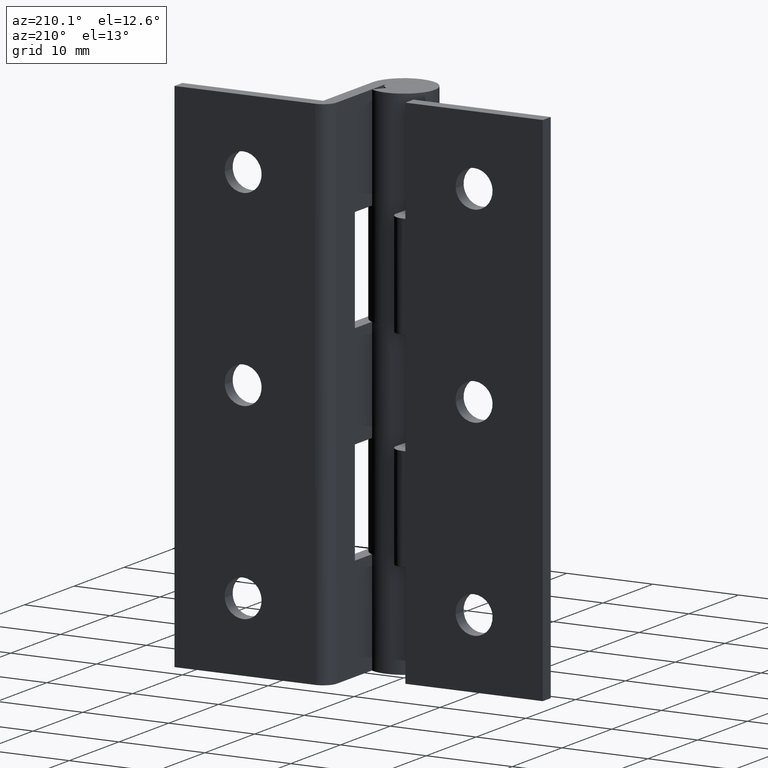
[diagram: clean part render]
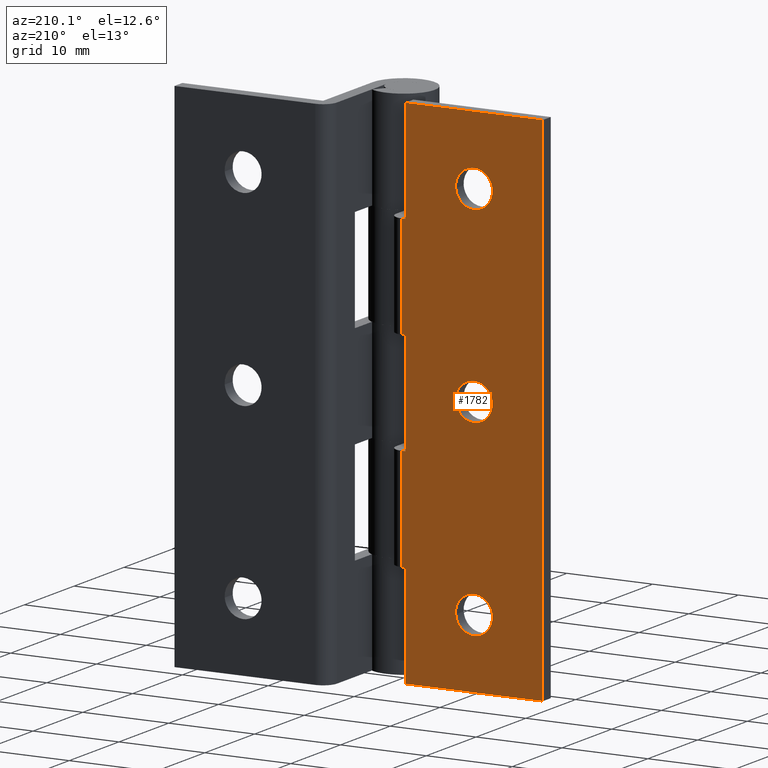
[diagram: same view with one face highlighted and labeled with its STEP entity id]
A machine part, auxiliary view. The second image highlights one B-rep face of the part: STEP entity #1782.
In plain terms, the highlighted face is a freeform B-spline surface patch.
Its self-contained STEP definition (entity closure, byte-faithful):
#330=CARTESIAN_POINT('',(-14.143372267521290,6.599999000000079,52.168687055877513));
#331=VERTEX_POINT('',#330);
#337=CARTESIAN_POINT('',(-12.0,6.599999000000079,54.149999999999999));
#338=VERTEX_POINT('',#337);
#339=CARTESIAN_POINT('',(-12.0,6.599999000000079,54.149999999999999));
#340=CARTESIAN_POINT('',(-13.987439556948599,6.599999000000080,54.150000000000013));
#341=CARTESIAN_POINT('',(-14.143372267521290,6.599999000000079,52.168687055877520));
#349=(BOUNDED_CURVE()B_SPLINE_CURVE(2,(#339,#340,#341),.UNSPECIFIED.,.F.,.U.)B_SPLINE_CURVE_WITH_KNOTS((3,3),(0.0,0.236331300622746),.UNSPECIFIED.)CURVE()GEOMETRIC_REPRESENTATION_ITEM()RATIONAL_B_SPLINE_CURVE((1.0,0.723120658616937,0.969723356150902))REPRESENTATION_ITEM(''));
#350=EDGE_CURVE('',#338,#331,#349,.T.);
#352=CARTESIAN_POINT('',(-9.856627732478707,6.599999000000080,51.831312944122487));
#353=VERTEX_POINT('',#352);
#354=CARTESIAN_POINT('',(-9.856627732478707,6.599999000000080,51.831312944122494));
#355=CARTESIAN_POINT('',(-9.850000000000001,6.599999000000079,51.915526269870576));
#356=CARTESIAN_POINT('',(-9.850000000000001,6.599999000000079,52.0));
#357=CARTESIAN_POINT('',(-9.850000000000001,6.599999000000079,54.150000000000006));
#358=CARTESIAN_POINT('',(-12.0,6.599999000000079,54.149999999999999));
#366=(BOUNDED_CURVE()B_SPLINE_CURVE(2,(#354,#355,#356,#357,#358),.UNSPECIFIED.,.F.,.U.)B_SPLINE_CURVE_WITH_KNOTS((3,2,3),(0.736331300622745,0.750000000000000,1.0),.UNSPECIFIED.)CURVE()GEOMETRIC_REPRESENTATION_ITEM()RATIONAL_B_SPLINE_CURVE((0.969723356150901,0.983986122569609,1.0,0.707106781186547,1.0))REPRESENTATION_ITEM(''));
#367=EDGE_CURVE('',#353,#338,#366,.T.);
#443=CARTESIAN_POINT('',(-12.0,6.599999000000079,49.850000000000001));
#444=VERTEX_POINT('',#443);
#445=CARTESIAN_POINT('',(-12.0,6.599999000000079,49.850000000000001));
#446=CARTESIAN_POINT('',(-10.012560443051404,6.599999000000079,49.850000000000016));
#447=CARTESIAN_POINT('',(-9.856627732478707,6.599999000000080,51.831312944122487));
#455=(BOUNDED_CURVE()B_SPLINE_CURVE(2,(#445,#446,#447),.UNSPECIFIED.,.F.,.U.)B_SPLINE_CURVE_WITH_KNOTS((3,3),(0.500000000000000,0.736331300622745),.UNSPECIFIED.)CURVE()GEOMETRIC_REPRESENTATION_ITEM()RATIONAL_B_SPLINE_CURVE((1.0,0.723120658616938,0.969723356150901))REPRESENTATION_ITEM(''));
#456=EDGE_CURVE('',#444,#353,#455,.T.);
#458=CARTESIAN_POINT('',(-14.143372267521290,6.599999000000079,52.168687055877513));
#459=CARTESIAN_POINT('',(-14.150000000000004,6.599999000000079,52.084473730129432));
#460=CARTESIAN_POINT('',(-14.150000000000000,6.599999000000079,52.0));
#461=CARTESIAN_POINT('',(-14.150000000000006,6.599999000000079,49.850000000000009));
#462=CARTESIAN_POINT('',(-12.0,6.599999000000079,49.850000000000001));
#470=(BOUNDED_CURVE()B_SPLINE_CURVE(2,(#458,#459,#460,#461,#462),.UNSPECIFIED.,.F.,.U.)B_SPLINE_CURVE_WITH_KNOTS((3,2,3),(0.236331300622746,0.250000000000000,0.500000000000000),.UNSPECIFIED.)CURVE()GEOMETRIC_REPRESENTATION_ITEM()RATIONAL_B_SPLINE_CURVE((0.969723356150902,0.983986122569610,1.0,0.707106781186547,1.0))REPRESENTATION_ITEM(''));
#471=EDGE_CURVE('',#331,#444,#470,.T.);
#512=CARTESIAN_POINT('',(-14.143372267521290,6.599999000000079,30.168687055877509));
#513=VERTEX_POINT('',#512);
#519=CARTESIAN_POINT('',(-12.0,6.599999000000079,32.149999999999999));
#520=VERTEX_POINT('',#519);
#521=CARTESIAN_POINT('',(-12.0,6.599999000000079,32.149999999999999));
#522=CARTESIAN_POINT('',(-13.987439556948599,6.599999000000080,32.150000000000006));
#523=CARTESIAN_POINT('',(-14.143372267521290,6.599999000000079,30.168687055877513));
#531=(BOUNDED_CURVE()B_SPLINE_CURVE(2,(#521,#522,#523),.UNSPECIFIED.,.F.,.U.)B_SPLINE_CURVE_WITH_KNOTS((3,3),(0.0,0.236331300622746),.UNSPECIFIED.)CURVE()GEOMETRIC_REPRESENTATION_ITEM()RATIONAL_B_SPLINE_CURVE((1.0,0.723120658616937,0.969723356150902))REPRESENTATION_ITEM(''));
#532=EDGE_CURVE('',#520,#513,#531,.T.);
#534=CARTESIAN_POINT('',(-9.856627732478707,6.599999000000079,29.831312944122491));
#535=VERTEX_POINT('',#534);
#536=CARTESIAN_POINT('',(-9.856627732478707,6.599999000000079,29.831312944122491));
#537=CARTESIAN_POINT('',(-9.850000000000001,6.599999000000079,29.915526269870572));
#538=CARTESIAN_POINT('',(-9.850000000000001,6.599999000000079,30.0));
#539=CARTESIAN_POINT('',(-9.850000000000001,6.599999000000079,32.149999999999999));
#540=CARTESIAN_POINT('',(-12.0,6.599999000000079,32.149999999999999));
#548=(BOUNDED_CURVE()B_SPLINE_CURVE(2,(#536,#537,#538,#539,#540),.UNSPECIFIED.,.F.,.U.)B_SPLINE_CURVE_WITH_KNOTS((3,2,3),(0.736331300622746,0.750000000000000,1.0),.UNSPECIFIED.)CURVE()GEOMETRIC_REPRESENTATION_ITEM()RATIONAL_B_SPLINE_CURVE((0.969723356150902,0.983986122569610,1.0,0.707106781186547,1.0))REPRESENTATION_ITEM(''));
#549=EDGE_CURVE('',#535,#520,#548,.T.);
#625=CARTESIAN_POINT('',(-12.0,6.599999000000079,27.850000000000001));
#626=VERTEX_POINT('',#625);
#627=CARTESIAN_POINT('',(-12.0,6.599999000000079,27.850000000000001));
#628=CARTESIAN_POINT('',(-10.012560443051404,6.599999000000079,27.849999999999998));
#629=CARTESIAN_POINT('',(-9.856627732478707,6.599999000000079,29.831312944122487));
#637=(BOUNDED_CURVE()B_SPLINE_CURVE(2,(#627,#628,#629),.UNSPECIFIED.,.F.,.U.)B_SPLINE_CURVE_WITH_KNOTS((3,3),(0.500000000000000,0.736331300622745),.UNSPECIFIED.)CURVE()GEOMETRIC_REPRESENTATION_ITEM()RATIONAL_B_SPLINE_CURVE((1.0,0.723120658616938,0.969723356150901))REPRESENTATION_ITEM(''));
#638=EDGE_CURVE('',#626,#535,#637,.T.);
#640=CARTESIAN_POINT('',(-14.143372267521295,6.599999000000079,30.168687055877513));
#641=CARTESIAN_POINT('',(-14.150000000000002,6.599999000000080,30.084473730129424));
#642=CARTESIAN_POINT('',(-14.150000000000000,6.599999000000079,30.0));
#643=CARTESIAN_POINT('',(-14.150000000000006,6.599999000000079,27.850000000000005));
#644=CARTESIAN_POINT('',(-12.0,6.599999000000079,27.850000000000001));
#652=(BOUNDED_CURVE()B_SPLINE_CURVE(2,(#640,#641,#642,#643,#644),.UNSPECIFIED.,.F.,.U.)B_SPLINE_CURVE_WITH_KNOTS((3,2,3),(0.236331300622746,0.250000000000000,0.500000000000000),.UNSPECIFIED.)CURVE()GEOMETRIC_REPRESENTATION_ITEM()RATIONAL_B_SPLINE_CURVE((0.969723356150902,0.983986122569610,1.0,0.707106781186547,1.0))REPRESENTATION_ITEM(''));
#653=EDGE_CURVE('',#513,#626,#652,.T.);
#694=CARTESIAN_POINT('',(-14.143372267521290,6.599999000000079,8.168687055877516));
#695=VERTEX_POINT('',#694);
#701=CARTESIAN_POINT('',(-12.0,6.599999000000079,10.150000000000000));
#702=VERTEX_POINT('',#701);
#703=CARTESIAN_POINT('',(-12.0,6.599999000000079,10.150000000000000));
#704=CARTESIAN_POINT('',(-13.987439556948599,6.599999000000080,10.149999999999999));
#705=CARTESIAN_POINT('',(-14.143372267521290,6.599999000000079,8.168687055877516));
#713=(BOUNDED_CURVE()B_SPLINE_CURVE(2,(#703,#704,#705),.UNSPECIFIED.,.F.,.U.)B_SPLINE_CURVE_WITH_KNOTS((3,3),(0.0,0.236331300622746),.UNSPECIFIED.)CURVE()GEOMETRIC_REPRESENTATION_ITEM()RATIONAL_B_SPLINE_CURVE((1.0,0.723120658616937,0.969723356150902))REPRESENTATION_ITEM(''));
#714=EDGE_CURVE('',#702,#695,#713,.T.);
#716=CARTESIAN_POINT('',(-9.856627732478707,6.599999000000079,7.831312944122485));
#717=VERTEX_POINT('',#716);
#718=CARTESIAN_POINT('',(-9.856627732478707,6.599999000000079,7.831312944122485));
#719=CARTESIAN_POINT('',(-9.850000000000003,6.599999000000081,7.915526269870572));
#720=CARTESIAN_POINT('',(-9.850000000000001,6.599999000000079,8.0));
#721=CARTESIAN_POINT('',(-9.850000000000001,6.599999000000079,10.149999999999999));
#722=CARTESIAN_POINT('',(-12.0,6.599999000000079,10.150000000000000));
#730=(BOUNDED_CURVE()B_SPLINE_CURVE(2,(#718,#719,#720,#721,#722),.UNSPECIFIED.,.F.,.U.)B_SPLINE_CURVE_WITH_KNOTS((3,2,3),(0.736331300622746,0.750000000000000,1.0),.UNSPECIFIED.)CURVE()GEOMETRIC_REPRESENTATION_ITEM()RATIONAL_B_SPLINE_CURVE((0.969723356150902,0.983986122569610,1.0,0.707106781186547,1.0))REPRESENTATION_ITEM(''));
#731=EDGE_CURVE('',#717,#702,#730,.T.);
#807=CARTESIAN_POINT('',(-12.0,6.599999000000079,5.850000000000001));
#808=VERTEX_POINT('',#807);
#809=CARTESIAN_POINT('',(-12.0,6.599999000000079,5.850000000000001));
#810=CARTESIAN_POINT('',(-10.012560443051404,6.599999000000079,5.850000000000000));
#811=CARTESIAN_POINT('',(-9.856627732478707,6.599999000000079,7.831312944122485));
#819=(BOUNDED_CURVE()B_SPLINE_CURVE(2,(#809,#810,#811),.UNSPECIFIED.,.F.,.U.)B_SPLINE_CURVE_WITH_KNOTS((3,3),(0.500000000000000,0.736331300622745),.UNSPECIFIED.)CURVE()GEOMETRIC_REPRESENTATION_ITEM()RATIONAL_B_SPLINE_CURVE((1.0,0.723120658616938,0.969723356150901))REPRESENTATION_ITEM(''));
#820=EDGE_CURVE('',#808,#717,#819,.T.);
#822=CARTESIAN_POINT('',(-14.143372267521290,6.599999000000079,8.168687055877516));
#823=CARTESIAN_POINT('',(-14.150000000000004,6.599999000000079,8.084473730129428));
#824=CARTESIAN_POINT('',(-14.150000000000000,6.599999000000079,8.0));
#825=CARTESIAN_POINT('',(-14.150000000000006,6.599999000000079,5.850000000000001));
#826=CARTESIAN_POINT('',(-12.0,6.599999000000079,5.850000000000001));
#834=(BOUNDED_CURVE()B_SPLINE_CURVE(2,(#822,#823,#824,#825,#826),.UNSPECIFIED.,.F.,.U.)B_SPLINE_CURVE_WITH_KNOTS((3,2,3),(0.236331300622746,0.250000000000000,0.500000000000000),.UNSPECIFIED.)CURVE()GEOMETRIC_REPRESENTATION_ITEM()RATIONAL_B_SPLINE_CURVE((0.969723356150902,0.983986122569610,1.0,0.707106781186547,1.0))REPRESENTATION_ITEM(''));
#835=EDGE_CURVE('',#695,#808,#834,.T.);
#918=CARTESIAN_POINT('',(-3.599999999999900,6.599999000000079,24.0));
#919=VERTEX_POINT('',#918);
#933=CARTESIAN_POINT('',(-3.999999999999901,6.599999000000079,24.0));
#934=VERTEX_POINT('',#933);
#935=CARTESIAN_POINT('',(-3.999999999999901,6.599999000000079,24.0));
#936=CARTESIAN_POINT('',(-3.599999999999900,6.599999000000079,24.0));
#937=QUASI_UNIFORM_CURVE('',1,(#935,#936),.UNSPECIFIED.,.F.,.U.);
#938=EDGE_CURVE('',#934,#919,#937,.T.);
#962=CARTESIAN_POINT('',(-3.999999999999901,6.599999000000079,36.0));
#963=VERTEX_POINT('',#962);
#969=CARTESIAN_POINT('',(-3.599999999999900,6.599999000000079,36.0));
#970=VERTEX_POINT('',#969);
#971=CARTESIAN_POINT('',(-3.599999999999900,6.599999000000079,36.0));
#972=CARTESIAN_POINT('',(-3.999999999999901,6.599999000000079,36.0));
#973=QUASI_UNIFORM_CURVE('',1,(#971,#972),.UNSPECIFIED.,.F.,.U.);
#974=EDGE_CURVE('',#970,#963,#973,.T.);
#1066=CARTESIAN_POINT('',(-3.999999999999901,6.599999000000079,36.0));
#1067=CARTESIAN_POINT('',(-3.999999999999901,6.599999000000079,24.0));
#1068=QUASI_UNIFORM_CURVE('',1,(#1066,#1067),.UNSPECIFIED.,.F.,.U.);
#1069=EDGE_CURVE('',#963,#934,#1068,.T.);
#1089=CARTESIAN_POINT('',(-3.999999999999901,6.599999000000079,0.0));
#1090=VERTEX_POINT('',#1089);
#1096=CARTESIAN_POINT('',(-3.999999999999901,6.599999000000079,12.0));
#1097=VERTEX_POINT('',#1096);
#1098=CARTESIAN_POINT('',(-3.999999999999901,6.599999000000079,0.0));
#1099=CARTESIAN_POINT('',(-3.999999999999901,6.599999000000079,12.0));
#1100=QUASI_UNIFORM_CURVE('',1,(#1098,#1099),.UNSPECIFIED.,.F.,.U.);
#1101=EDGE_CURVE('',#1090,#1097,#1100,.T.);
#1124=CARTESIAN_POINT('',(-3.599999999999900,6.599999000000079,12.0));
#1125=VERTEX_POINT('',#1124);
#1126=CARTESIAN_POINT('',(-3.999999999999901,6.599999000000079,12.0));
#1127=CARTESIAN_POINT('',(-3.599999999999900,6.599999000000079,12.0));
#1128=QUASI_UNIFORM_CURVE('',1,(#1126,#1127),.UNSPECIFIED.,.F.,.U.);
#1129=EDGE_CURVE('',#1097,#1125,#1128,.T.);
#1287=CARTESIAN_POINT('',(-3.599999999999900,6.599999000000079,48.0));
#1288=VERTEX_POINT('',#1287);
#1302=CARTESIAN_POINT('',(-3.999999999999901,6.599999000000079,48.0));
#1303=VERTEX_POINT('',#1302);
#1304=CARTESIAN_POINT('',(-3.999999999999901,6.599999000000079,48.0));
#1305=CARTESIAN_POINT('',(-3.599999999999900,6.599999000000079,48.0));
#1306=QUASI_UNIFORM_CURVE('',1,(#1304,#1305),.UNSPECIFIED.,.F.,.U.);
#1307=EDGE_CURVE('',#1303,#1288,#1306,.T.);
#1330=CARTESIAN_POINT('',(-3.999999999999901,6.599999000000079,60.0));
#1331=VERTEX_POINT('',#1330);
#1332=CARTESIAN_POINT('',(-3.999999999999901,6.599999000000079,60.0));
#1333=CARTESIAN_POINT('',(-3.999999999999901,6.599999000000079,48.0));
#1334=QUASI_UNIFORM_CURVE('',1,(#1332,#1333),.UNSPECIFIED.,.F.,.U.);
#1335=EDGE_CURVE('',#1331,#1303,#1334,.T.);
#1350=CARTESIAN_POINT('',(-20.0,6.599999000000000,0.0));
#1351=VERTEX_POINT('',#1350);
#1366=CARTESIAN_POINT('',(-20.0,6.599999000000000,60.0));
#1367=VERTEX_POINT('',#1366);
#1373=CARTESIAN_POINT('',(-20.0,6.599999000000000,60.0));
#1374=CARTESIAN_POINT('',(-20.0,6.599999000000000,0.0));
#1375=QUASI_UNIFORM_CURVE('',1,(#1373,#1374),.UNSPECIFIED.,.F.,.U.);
#1376=EDGE_CURVE('',#1367,#1351,#1375,.T.);
#1387=CARTESIAN_POINT('',(-3.999999999999901,6.599999000000079,60.0));
#1388=CARTESIAN_POINT('',(-20.0,6.599999000000000,60.0));
#1389=QUASI_UNIFORM_CURVE('',1,(#1387,#1388),.UNSPECIFIED.,.F.,.U.);
#1390=EDGE_CURVE('',#1331,#1367,#1389,.T.);
#1406=CARTESIAN_POINT('',(-3.999999999999901,6.599999000000079,0.0));
#1407=CARTESIAN_POINT('',(-20.0,6.599999000000000,0.0));
#1408=QUASI_UNIFORM_CURVE('',1,(#1406,#1407),.UNSPECIFIED.,.F.,.U.);
#1409=EDGE_CURVE('',#1090,#1351,#1408,.T.);
#1435=CARTESIAN_POINT('',(-3.599999999999900,6.599999000000079,24.0));
#1436=CARTESIAN_POINT('',(-3.599999999999900,6.599999000000079,12.0));
#1437=QUASI_UNIFORM_CURVE('',1,(#1435,#1436),.UNSPECIFIED.,.F.,.U.);
#1438=EDGE_CURVE('',#919,#1125,#1437,.T.);
#1470=CARTESIAN_POINT('',(-3.599999999999900,6.599999000000079,48.0));
#1471=CARTESIAN_POINT('',(-3.599999999999900,6.599999000000079,36.0));
#1472=QUASI_UNIFORM_CURVE('',1,(#1470,#1471),.UNSPECIFIED.,.F.,.U.);
#1473=EDGE_CURVE('',#1288,#970,#1472,.T.);
#1745=CARTESIAN_POINT('',(-20.819179968213621,6.599999000000000,62.996999883708362));
#1746=CARTESIAN_POINT('',(-20.819179968213621,6.599999000000000,-2.997001493033767));
#1747=CARTESIAN_POINT('',(-2.780819591903999,6.599999000000000,62.996999883708362));
#1748=CARTESIAN_POINT('',(-2.780819591903999,6.599999000000000,-2.997001493033767));
#1749=B_SPLINE_SURFACE_WITH_KNOTS('',1,1,((#1745,#1747),(#1746,#1748)),.UNSPECIFIED.,.F.,.F.,.U.,(2,2),(2,2),(0.0,65.994001376742119),(0.0,18.038360376309619),.UNSPECIFIED.);
#1750=ORIENTED_EDGE('',*,*,#974,.T.);
#1751=ORIENTED_EDGE('',*,*,#1069,.T.);
#1752=ORIENTED_EDGE('',*,*,#938,.T.);
#1753=ORIENTED_EDGE('',*,*,#1438,.T.);
#1754=ORIENTED_EDGE('',*,*,#1129,.F.);
#1755=ORIENTED_EDGE('',*,*,#1101,.F.);
#1756=ORIENTED_EDGE('',*,*,#1409,.T.);
#1757=ORIENTED_EDGE('',*,*,#1376,.F.);
#1758=ORIENTED_EDGE('',*,*,#1390,.F.);
#1759=ORIENTED_EDGE('',*,*,#1335,.T.);
#1760=ORIENTED_EDGE('',*,*,#1307,.T.);
#1761=ORIENTED_EDGE('',*,*,#1473,.T.);
#1762=EDGE_LOOP('',(#1750,#1751,#1752,#1753,#1754,#1755,#1756,#1757,#1758,#1759,#1760,#1761));
#1763=FACE_OUTER_BOUND('',#1762,.T.);
#1764=ORIENTED_EDGE('',*,*,#820,.T.);
#1765=ORIENTED_EDGE('',*,*,#731,.T.);
#1766=ORIENTED_EDGE('',*,*,#714,.T.);
#1767=ORIENTED_EDGE('',*,*,#835,.T.);
#1768=EDGE_LOOP('',(#1764,#1765,#1766,#1767));
#1769=FACE_BOUND('',#1768,.T.);
#1770=ORIENTED_EDGE('',*,*,#638,.T.);
#1771=ORIENTED_EDGE('',*,*,#549,.T.);
#1772=ORIENTED_EDGE('',*,*,#532,.T.);
#1773=ORIENTED_EDGE('',*,*,#653,.T.);
#1774=EDGE_LOOP('',(#1770,#1771,#1772,#1773));
#1775=FACE_BOUND('',#1774,.T.);
#1776=ORIENTED_EDGE('',*,*,#456,.T.);
#1777=ORIENTED_EDGE('',*,*,#367,.T.);
#1778=ORIENTED_EDGE('',*,*,#350,.T.);
#1779=ORIENTED_EDGE('',*,*,#471,.T.);
#1780=EDGE_LOOP('',(#1776,#1777,#1778,#1779));
#1781=FACE_BOUND('',#1780,.T.);
#1782=ADVANCED_FACE('',(#1763,#1769,#1775,#1781),#1749,.F.);